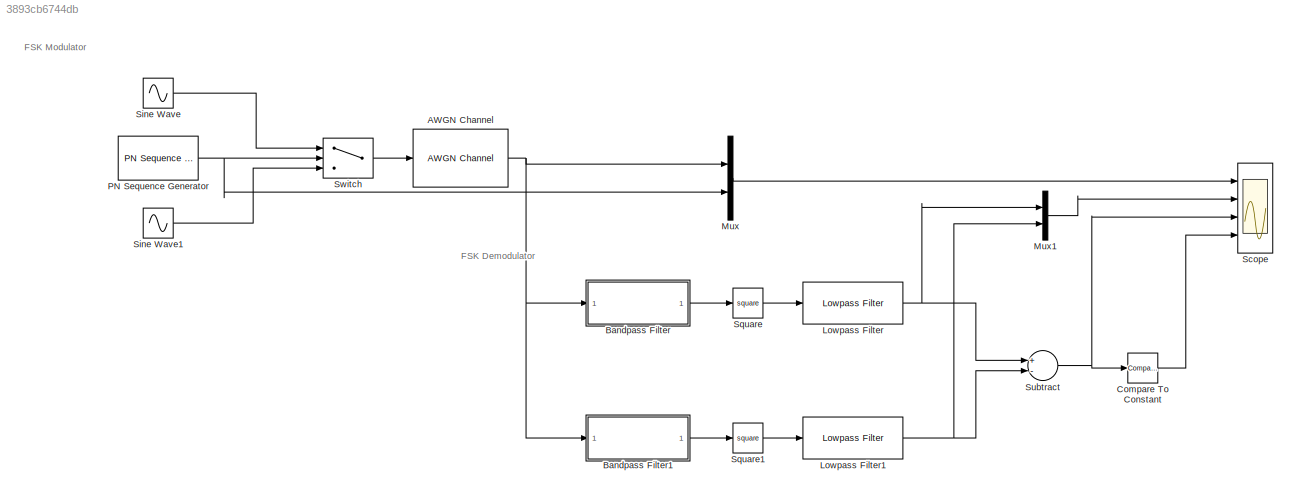
MODEL slx_3893cb6744db
KIND model
CONFIG AbsTol = auto
CONFIG EnableMultiTasking = off
CONFIG FixedStep = auto
CONFIG MaxStep = auto
CONFIG MinStep = auto
CONFIG RelTol = 1e-3
CONFIG SampleTimeConstraint = Unconstrained
CONFIG Solver = VariableStepAuto
CONFIG SolverName = VariableStepAuto
CONFIG StartTime = 0.0
CONFIG StopTime = 10
BLOCK [Reference] AWGN Channel  REF=commchan3/AWGN
Channel
  Ports = [1, 1]
  SourceBlock = commchan3/AWGN\nChannel
  SourceProductBaseCode = CM
  SourceProductName = Communications System Toolbox
  SourceType = AWGN Channel
  UserDataPersistent = on
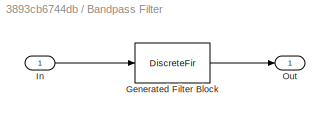
BLOCK [SubSystem] Bandpass Filter
  CopyFcn = fdesignblkfcn(gcbh, {'CopyFcn'});
  DialogController = fdesignblkfcn
  InitFcn = fdesignblkfcn(gcbh, {'InitFcn'});
  Ports = [1, 1]
  RequestExecContextInheritance = off
  UserDataPersistent = on
BLOCK [DiscreteFir] Bandpass Filter/Generated Filter Block
  Coefficients = [-0.000557060532119474524 0.000211453797432160462 0.000182651369273119282 0.000162354068101397539 0.000149190189532817283 0.00014098535827323773 0.000137202616269321604 0.000136286517926051875 0.000138195635253964043 0.000141723543320092975 0.000147134054257652886 0.000153402886730250065 0.000160996168409746924 0.000168960695963061712 0.000177929088053125728 0.000186917612308664478 0.0001967704156...<+23265ch>
  InputPortMap = u0
  InputProcessing = Columns as channels (frame based)
  OutputPortMap = o0
  Ports = [1, 1]
  Tag = BlockMethodSubSystem
BLOCK [Inport] Bandpass Filter/In
  IconDisplay = Port number
BLOCK [Outport] Bandpass Filter/Out
  IconDisplay = Port number
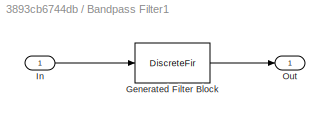
BLOCK [SubSystem] Bandpass Filter1
  CopyFcn = fdesignblkfcn(gcbh, {'CopyFcn'});
  DialogController = fdesignblkfcn
  InitFcn = fdesignblkfcn(gcbh, {'InitFcn'});
  Ports = [1, 1]
  RequestExecContextInheritance = off
  UserDataPersistent = on
BLOCK [DiscreteFir] Bandpass Filter1/Generated Filter Block
  Coefficients = [0.00910480466180604853 -0.00122231453089864314 -0.00113872601553866026 -0.00107450965954138285 -0.00100261564092619937 -0.000949203203456098349 -0.00088710989854036415 -0.000842768955368920075 -0.000788751956436989365 -0.000751945401784828021 -0.000704432249374694133 -0.000673879161302888205 -0.000631424864500122751 -0.00060615027623723769 -0.000567243234781659653 -0.000547151579641668925 -0.0005...<+16599ch>
  InputPortMap = u0
  InputProcessing = Columns as channels (frame based)
  OutputPortMap = o0
  Ports = [1, 1]
  Tag = BlockMethodSubSystem
BLOCK [Inport] Bandpass Filter1/In
  IconDisplay = Port number
BLOCK [Outport] Bandpass Filter1/Out
  IconDisplay = Port number
BLOCK [Reference] Compare To Constant  REF=simulink/Logic and Bit
Operations/Compare
To Constant
  Ports = [1, 1]
  SourceBlock = simulink/Logic and Bit\nOperations/Compare\nTo Constant
  SourceProductBaseCode = SL
  SourceProductName = Simulink
  SourceType = Compare To Constant
BLOCK [Reference] Lowpass Filter  REF=dspfdesign/Lowpass Filter
  Ports = [1, 1]
  SourceBlock = dspfdesign/Lowpass Filter
  SourceProductBaseCode = DS
  SourceProductName = DSP System Toolbox
  SourceType = dsp.LowpassFilter
BLOCK [Reference] Lowpass Filter1  REF=dspfdesign/Lowpass Filter
  Ports = [1, 1]
  SourceBlock = dspfdesign/Lowpass Filter
  SourceProductBaseCode = DS
  SourceProductName = DSP System Toolbox
  SourceType = dsp.LowpassFilter
BLOCK [Mux] Mux
  DisplayOption = bar
  Inputs = 2
  Ports = [2, 1]
BLOCK [Mux] Mux1
  DisplayOption = bar
  Inputs = 2
  Ports = [2, 1]
BLOCK [Reference] PN Sequence Generator  REF=commseqgen3/PN Sequence
Generator
  Ports = [0, 1]
  SourceBlock = commseqgen3/PN Sequence\nGenerator
  SourceProductBaseCode = CM
  SourceProductName = Communications System Toolbox
  SourceType = PN Sequence Generator
BLOCK [Scope] Scope
  Floating = off
  NumInputPorts = 4
  Ports = [4]
  ScopeSpecificationString = Simulink.scopes.TimeScopeBlockCfg('CurrentConfiguration', extmgr.ConfigurationSet(extmgr.Configuration('Core','General UI',true),extmgr.Configuration('Core','Source UI',true),extmgr.Configuration('Sources','WiredSimulink',true),extmgr.Configuration('Visuals','Time Domain',true,'SerializedDisplays',{struct('MinYLimReal','-1.35882','MaxYLimReal','1.3634','YLabelReal','','MinYLimMag','0.00000','MaxYL...<+3449ch>
BLOCK [Sin] Sine Wave
  Frequency = 2*pi*8
  Phase = pi/4
  Ports = [0, 1]
  SampleTime = 0.001
BLOCK [Sin] Sine Wave1
  Frequency = 2*pi*12
  Phase = pi/4
  Ports = [0, 1]
  SampleTime = 0.001
BLOCK [Math] Square
  Operator = square
  Ports = [1, 1]
BLOCK [Math] Square1
  Operator = square
  Ports = [1, 1]
BLOCK [Sum] Subtract
  InputSameDT = off
  Inputs = +-
  OutDataTypeStr = Inherit: Inherit via internal rule
  Ports = [2, 1]
  SaturateOnIntegerOverflow = off
BLOCK [Switch] Switch
  Criteria = u2 > Threshold
  InputSameDT = off
  SaturateOnIntegerOverflow = off
  Threshold = 0.5
ANNOTATION (root): FSK Demodulator
ANNOTATION (root): FSK Modulator
NET AWGN Channel:1 -> Bandpass Filter1:1, Bandpass Filter:1, Mux:1
LINE Bandpass Filter1:1 -> Square1:1
LINE Bandpass Filter:1 -> Square:1
LINE Compare To Constant:1 -> Scope:4
NET Lowpass Filter1:1 -> Mux1:2, Subtract:2
NET Lowpass Filter:1 -> Mux1:1, Subtract:1
LINE Mux1:1 -> Scope:2
LINE Mux:1 -> Scope:1
NET PN Sequence Generator:1 -> Mux:2, Switch:2
LINE Sine Wave1:1 -> Switch:3
LINE Sine Wave:1 -> Switch:1
LINE Square1:1 -> Lowpass Filter1:1
LINE Square:1 -> Lowpass Filter:1
NET Subtract:1 -> Compare To Constant:1, Scope:3
LINE Switch:1 -> AWGN Channel:1
note: NET lines group one-source signal fan-out (src -> all destinations, sorted); 1:1 wires keep LINE
